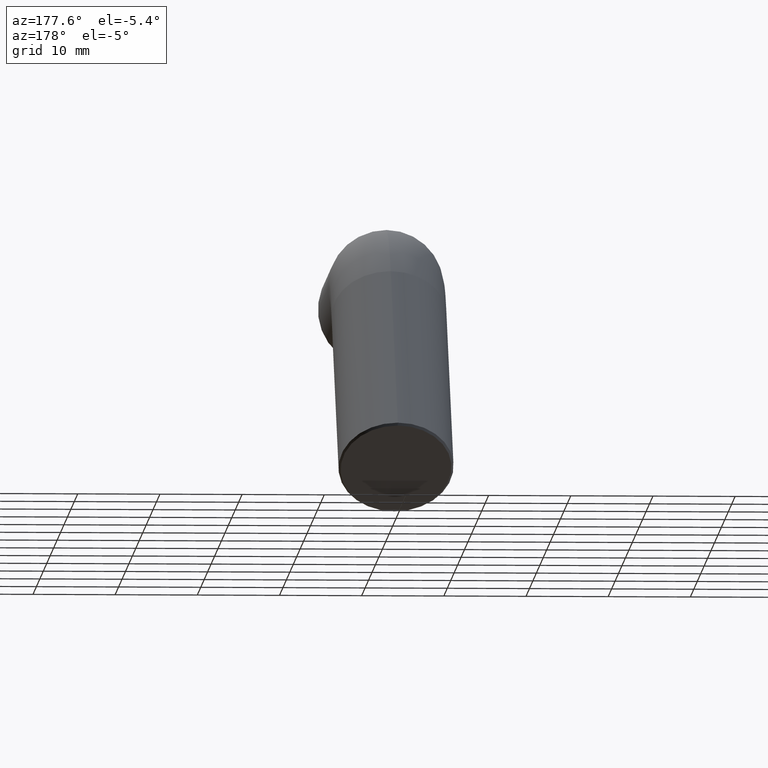
[diagram: clean part render]
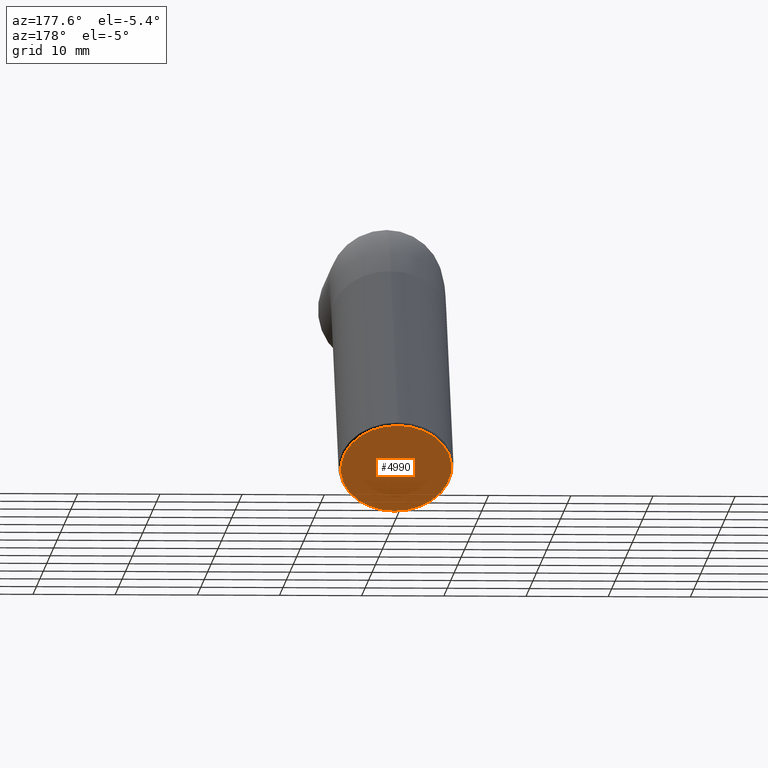
[diagram: same view with one face highlighted and labeled with its STEP entity id]
A machine part, auxiliary view. The second image highlights one B-rep face of the part: STEP entity #4990.
In plain terms, the highlighted planar face has unit normal (0, 0.7071, -0.7071).
Its self-contained STEP definition (entity closure, byte-faithful):
#114 = VERTEX_POINT ( 'NONE', #3537 ) ;
#492 = DIRECTION ( 'NONE',  ( 0.0000000000000000000, 0.7071067811865487900, 0.7071067811865461300 ) ) ;
#850 = CARTESIAN_POINT ( 'NONE',  ( 0.0000000000000000000, 60.00000000000000000, -24.99999999999999300 ) ) ;
#896 = DIRECTION ( 'NONE',  ( 0.0000000000000000000, 0.7071067811865463500, -0.7071067811865487900 ) ) ;
#1065 = DIRECTION ( 'NONE',  ( 0.0000000000000000000, 0.7071067811865463500, -0.7071067811865487900 ) ) ;
#1305 = CIRCLE ( 'NONE', #11290, 6.750000000000052400 ) ;
#1317 = DIRECTION ( 'NONE',  ( 0.0000000000000000000, 0.7071067811865463500, -0.7071067811865487900 ) ) ;
#1413 = CARTESIAN_POINT ( 'NONE',  ( 8.419446744138077900E-016, 64.77297077300923400, -20.22702922699076900 ) ) ;
#2006 = FACE_OUTER_BOUND ( 'NONE', #10361, .T. ) ;
#2110 = AXIS2_PLACEMENT_3D ( 'NONE', #850, #896, #9175 ) ;
#2136 = CIRCLE ( 'NONE', #8931, 6.750000000000052400 ) ;
#2892 = EDGE_CURVE ( 'NONE', #114, #3153, #1305, .T. ) ;
#3153 = VERTEX_POINT ( 'NONE', #1413 ) ;
#3430 = EDGE_CURVE ( 'NONE', #3153, #114, #2136, .T. ) ;
#3537 = CARTESIAN_POINT ( 'NONE',  ( 0.0000000000000000000, 55.22702922699075900, -29.77297077300922000 ) ) ;
#4646 = CARTESIAN_POINT ( 'NONE',  ( 0.0000000000000000000, 60.00000000000000000, -24.99999999999999300 ) ) ;
#4755 = DIRECTION ( 'NONE',  ( 0.0000000000000000000, 0.7071067811865487900, 0.7071067811865461300 ) ) ;
#4990 = ADVANCED_FACE ( 'NONE', ( #2006 ), #11810, .T. ) ;
#5991 = ORIENTED_EDGE ( 'NONE', *, *, #3430, .T. ) ;
#8801 = ORIENTED_EDGE ( 'NONE', *, *, #2892, .T. ) ;
#8931 = AXIS2_PLACEMENT_3D ( 'NONE', #4646, #1065, #4755 ) ;
#9175 = DIRECTION ( 'NONE',  ( 0.0000000000000000000, 0.7071067811865487900, 0.7071067811865463500 ) ) ;
#10361 = EDGE_LOOP ( 'NONE', ( #8801, #5991 ) ) ;
#10390 = CARTESIAN_POINT ( 'NONE',  ( 0.0000000000000000000, 60.00000000000000000, -24.99999999999999300 ) ) ;
#11290 = AXIS2_PLACEMENT_3D ( 'NONE', #10390, #1317, #492 ) ;
#11810 = PLANE ( 'NONE',  #2110 ) ;